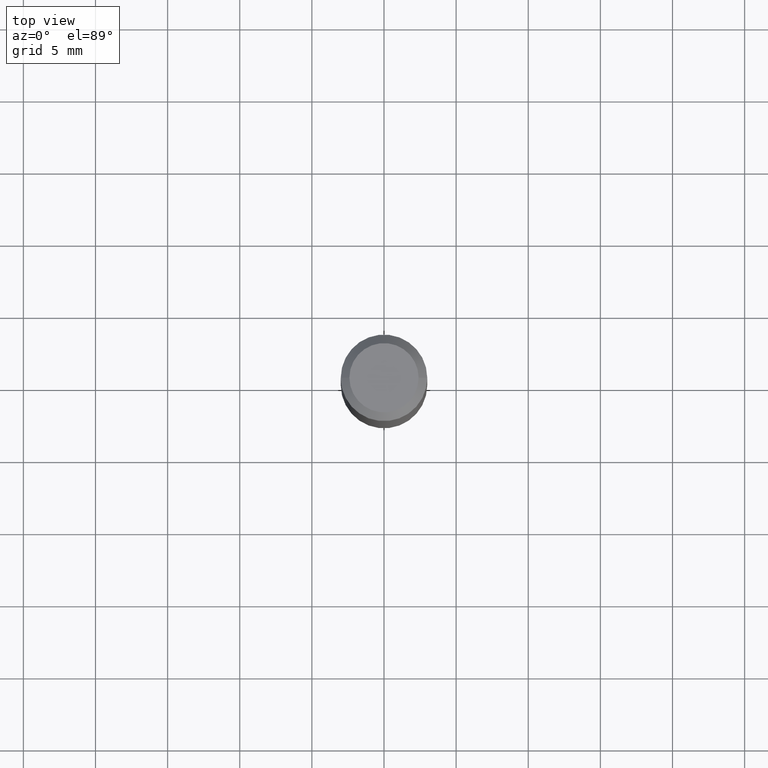
[diagram: clean part render]
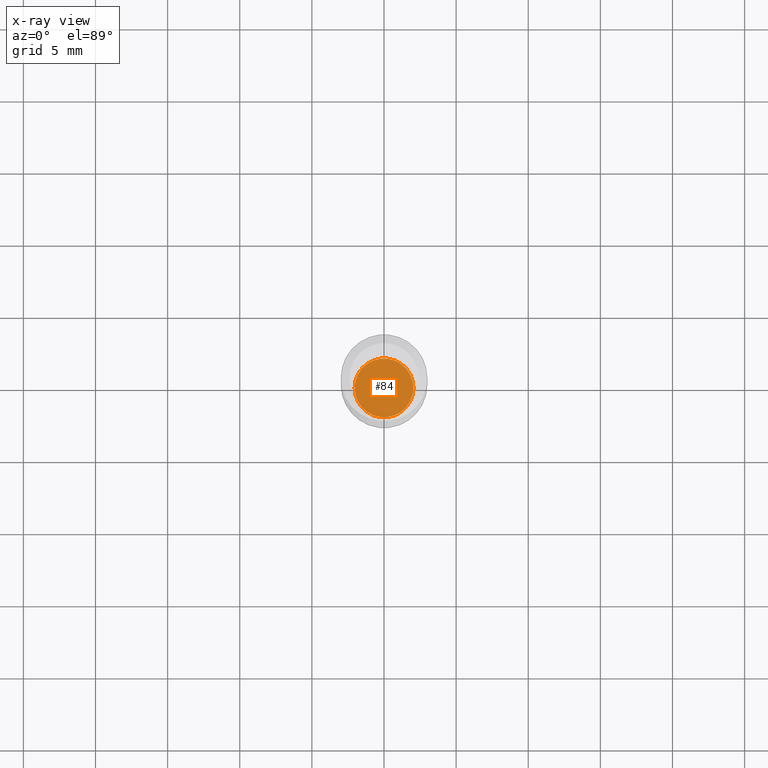
[diagram: x-ray — body ghosted, one internal face saturated and labeled with its STEP entity id]
A machine part, top view, then the same camera in x-ray: the body is ghosted and one INTERNAL B-rep face — a face not visible from any outside direction — is saturated and labeled: STEP entity #84.
In plain terms, the highlighted planar face has unit normal (-0, 0, 1).
Its self-contained STEP definition (entity closure, byte-faithful):
#58 = ORIENTED_EDGE ( 'NONE', *, *, #415, .F. ) ;
#71 = DIRECTION ( 'NONE',  ( 1.000000000000000000, -6.982962677686265922E-15, 4.876176775795935793E-29 ) ) ;
#76 = AXIS2_PLACEMENT_3D ( 'NONE', #78, #203, #71 ) ;
#78 = CARTESIAN_POINT ( 'NONE',  ( 1.074206145470067474E-30, -1.108127649382113880E-14, -1.606499999999999817 ) ) ;
#84 = ADVANCED_FACE ( 'NONE', ( #438 ), #471, .F. ) ;
#116 = DIRECTION ( 'NONE',  ( 1.000000000000000000, -6.982962677686265922E-15, 0.000000000000000000 ) ) ;
#125 = EDGE_CURVE ( 'NONE', #133, #299, #452, .T. ) ;
#133 = VERTEX_POINT ( 'NONE', #413 ) ;
#138 = CARTESIAN_POINT ( 'NONE',  ( 3.928645637136422284E-29, -5.609064770851513425E-15, -1.606500000000000261 ) ) ;
#203 = DIRECTION ( 'NONE',  ( -2.438088387897960049E-29, 3.491481338843145188E-15, 1.000000000000000000 ) ) ;
#299 = VERTEX_POINT ( 'NONE', #308 ) ;
#308 = CARTESIAN_POINT ( 'NONE',  ( -0.08019999999999999352, -5.036560269597802316E-15, -1.606500000000000261 ) ) ;
#314 = DIRECTION ( 'NONE',  ( -2.445468806185136597E-29, 3.491481338843145583E-15, 1.000000000000000000 ) ) ;
#325 = DIRECTION ( 'NONE',  ( -2.445468806185136597E-29, 3.491481338843145583E-15, 1.000000000000000000 ) ) ;
#350 = EDGE_LOOP ( 'NONE', ( #374, #58 ) ) ;
#374 = ORIENTED_EDGE ( 'NONE', *, *, #125, .F. ) ;
#375 = CARTESIAN_POINT ( 'NONE',  ( 3.928645637136422284E-29, -5.609064770851513425E-15, -1.606500000000000261 ) ) ;
#393 = AXIS2_PLACEMENT_3D ( 'NONE', #138, #314, #116 ) ;
#395 = CIRCLE ( 'NONE', #393, 0.08019999999999999352 ) ;
#403 = AXIS2_PLACEMENT_3D ( 'NONE', #375, #325, #436 ) ;
#413 = CARTESIAN_POINT ( 'NONE',  ( 0.08019999999999999352, -6.169098377601952280E-15, -1.606500000000000261 ) ) ;
#415 = EDGE_CURVE ( 'NONE', #299, #133, #395, .T. ) ;
#436 = DIRECTION ( 'NONE',  ( 1.000000000000000000, -6.982962677686265922E-15, 0.000000000000000000 ) ) ;
#438 = FACE_OUTER_BOUND ( 'NONE', #350, .T. ) ;
#452 = CIRCLE ( 'NONE', #403, 0.08019999999999999352 ) ;
#471 = PLANE ( 'NONE',  #76 ) ;